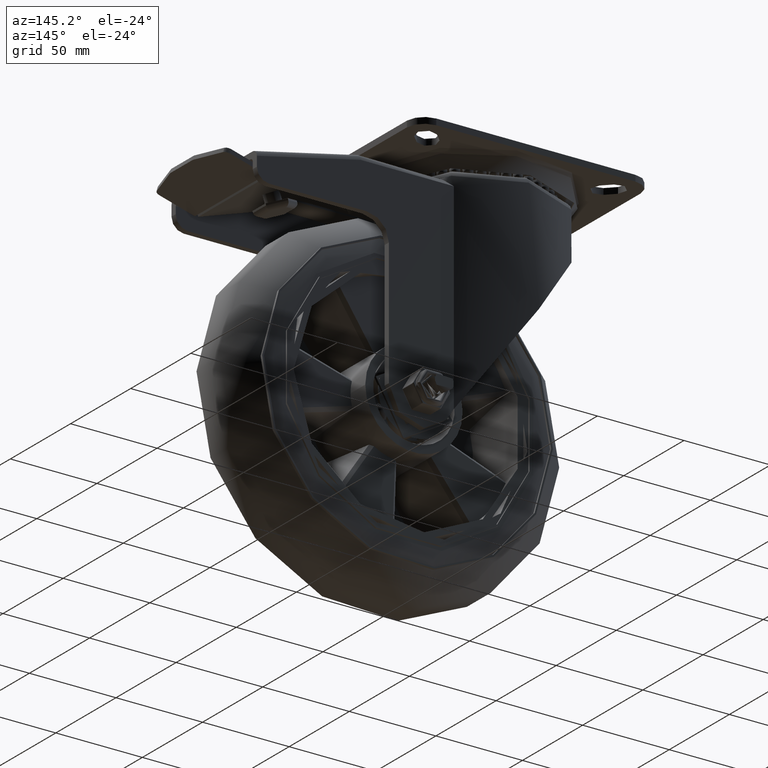
[diagram: clean part render]
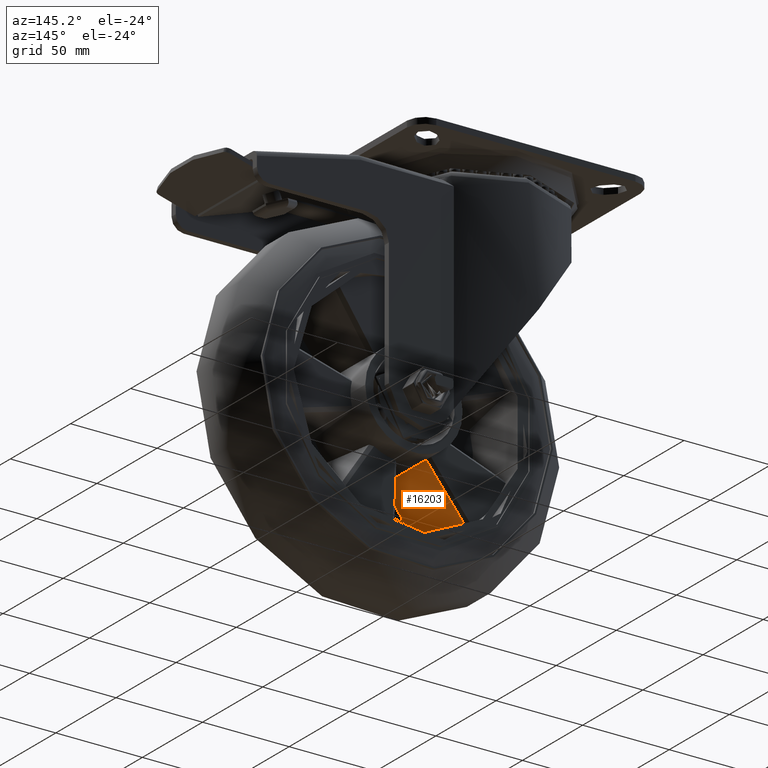
[diagram: same view with one face highlighted and labeled with its STEP entity id]
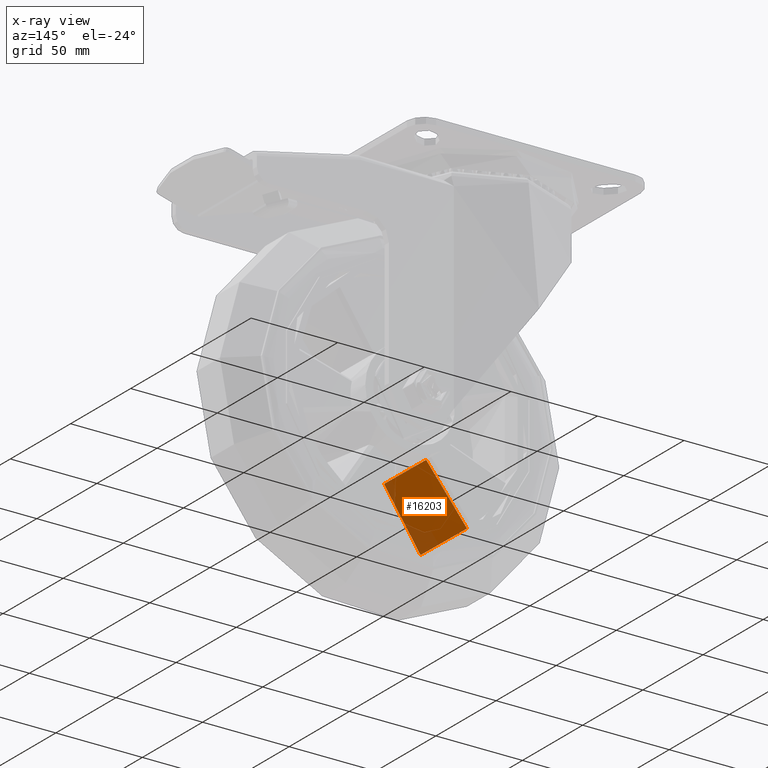
[diagram: x-ray of the same camera — body ghosted, the highlighted face saturated]
A machine part, auxiliary view. The second image highlights one B-rep face of the part: STEP entity #16203.
The next image is the same camera in x-ray: the body ghosted, the highlighted face saturated — about 15% of this face is hidden behind the body in this view.
In plain terms, the highlighted face is a freeform B-spline surface patch.
Its self-contained STEP definition (entity closure, byte-faithful):
#613=B_SPLINE_SURFACE_WITH_KNOTS('',3,3,((#33957,#33958,#33959,#33960),
(#33961,#33962,#33963,#33964),(#33965,#33966,#33967,#33968),(#33969,#33970,
#33971,#33972)),.UNSPECIFIED.,.F.,.F.,.F.,(4,4),(4,4),(-0.00166852237138922,
0.998003343523286),(0.0245552527992,0.975444388399247),.UNSPECIFIED.);
#1505=B_SPLINE_CURVE_WITH_KNOTS('',3,(#27772,#27773,#27774,#27775,#27776,
#27777,#27778),.UNSPECIFIED.,.F.,.F.,(4,3,4),(-3.23842418585543,-1.61946630273231,
-0.000513477992853393),.UNSPECIFIED.);
#1518=B_SPLINE_CURVE_WITH_KNOTS('',3,(#27912,#27913,#27914,#27915,#27916,
#27917,#27918),.UNSPECIFIED.,.F.,.F.,(4,3,4),(-0.0318984203530796,-0.0168657522652112,
-9.06812926331185E-5),.UNSPECIFIED.);
#1567=B_SPLINE_CURVE_WITH_KNOTS('',3,(#30395,#30396,#30397,#30398,#30399,
#30400,#30401,#30402,#30403,#30404,#30405,#30406,#30407,#30408),
 .UNSPECIFIED.,.F.,.F.,(4,2,2,2,2,2,4),(-0.0379052340955124,-0.0282118198192486,
-0.0211999931851508,-0.0168176015388397,-0.0124352098925286,-0.00542338325843073,
-4.10757890556036E-6),.UNSPECIFIED.);
#1607=B_SPLINE_CURVE_WITH_KNOTS('',3,(#33973,#33974,#33975,#33976,#33977,
#33978),.UNSPECIFIED.,.F.,.F.,(4,2,4),(-0.0379267140891082,-0.019191178874427,
-5.15772847908533E-6),.UNSPECIFIED.);
#2459=FACE_OUTER_BOUND('',#3455,.T.);
#3455=EDGE_LOOP('',(#12776,#12777,#12778,#12779));
#7475=VERTEX_POINT('',#27760);
#7476=VERTEX_POINT('',#27771);
#7496=VERTEX_POINT('',#27909);
#7497=VERTEX_POINT('',#27911);
#9319=EDGE_CURVE('',#7475,#7476,#1505,.T.);
#9341=EDGE_CURVE('',#7497,#7496,#1518,.T.);
#9419=EDGE_CURVE('',#7497,#7475,#1567,.T.);
#9459=EDGE_CURVE('',#7496,#7476,#1607,.T.);
#12776=ORIENTED_EDGE('',*,*,#9419,.F.);
#12777=ORIENTED_EDGE('',*,*,#9341,.T.);
#12778=ORIENTED_EDGE('',*,*,#9459,.T.);
#12779=ORIENTED_EDGE('',*,*,#9319,.F.);
#16203=ADVANCED_FACE('',(#2459),#613,.T.);
#27760=CARTESIAN_POINT('',(-40.3058015607661,16.1048068446078,-52.2608575244565));
#27771=CARTESIAN_POINT('',(-35.6076372986452,-15.749999999569,-55.570641224509));
#27772=CARTESIAN_POINT('Ctrl Pts',(-40.3069504830653,16.1048034564598,-52.2623166608184));
#27773=CARTESIAN_POINT('Ctrl Pts',(-39.5488021870193,10.7938914223544,-52.8470332936401));
#27774=CARTESIAN_POINT('Ctrl Pts',(-38.7774315394786,5.48800582589315,-53.4156376118919));
#27775=CARTESIAN_POINT('Ctrl Pts',(-37.9933254741434,0.177374570169425,
-53.9676497342177));
#27776=CARTESIAN_POINT('Ctrl Pts',(-37.2092218587232,-5.13324009265176,
-54.5196601317986));
#27777=CARTESIAN_POINT('Ctrl Pts',(-36.4137864297751,-10.43910746722,-55.0540903034244));
#27778=CARTESIAN_POINT('Ctrl Pts',(-35.6076372979117,-15.7499999995402,
-55.5706412241231));
#27909=CARTESIAN_POINT('',(-14.5311521998235,-15.75,-24.0511042521037));
#27911=CARTESIAN_POINT('',(-16.8313795725861,15.9242729776921,-22.5014368803543));
#27912=CARTESIAN_POINT('Ctrl Pts',(-16.8313795716671,15.9242729779243,-22.5014368835556));
#27913=CARTESIAN_POINT('Ctrl Pts',(-16.4817078975142,10.9335119839251,-22.762996043592));
#27914=CARTESIAN_POINT('Ctrl Pts',(-16.1256516145251,5.9466374804395,-23.0166195707202));
#27915=CARTESIAN_POINT('Ctrl Pts',(-15.7634645229341,0.954901172306764,
-23.2620546076898));
#27916=CARTESIAN_POINT('Ctrl Pts',(-15.3592971368603,-4.61541610975299,
-23.535937470017));
#27917=CARTESIAN_POINT('Ctrl Pts',(-14.9483763805905,-10.179663629837,-23.7990265093773));
#27918=CARTESIAN_POINT('Ctrl Pts',(-14.5311521999173,-15.7500000000095,
-24.0511042520478));
#30395=CARTESIAN_POINT('Ctrl Pts',(-16.8313795753416,15.9242729752292,-22.5014368784615));
#30396=CARTESIAN_POINT('Ctrl Pts',(-18.8316945711611,15.9399142311691,-25.039002974376));
#30397=CARTESIAN_POINT('Ctrl Pts',(-20.8322248536468,15.9555070707382,-27.5763992613005));
#30398=CARTESIAN_POINT('Ctrl Pts',(-24.2802234029072,15.9822742778635,-31.9489580889059));
#30399=CARTESIAN_POINT('Ctrl Pts',(-25.7275906688012,15.9934776701532,-33.7842003349522));
#30400=CARTESIAN_POINT('Ctrl Pts',(-28.0797399251335,16.0116240972702,-36.7663288918311));
#30401=CARTESIAN_POINT('Ctrl Pts',(-28.9844553679044,16.018589291852,-37.9132677405138));
#30402=CARTESIAN_POINT('Ctrl Pts',(-30.7939707039736,16.0324891253695,-40.2070787523774));
#30403=CARTESIAN_POINT('Ctrl Pts',(-31.6987705970561,16.0394237642056,-41.3539509154355));
#30404=CARTESIAN_POINT('Ctrl Pts',(-34.0513589182513,16.0574113657309,-44.3357327632056));
#30405=CARTESIAN_POINT('Ctrl Pts',(-35.4992125145102,16.0684388434511,-46.1705909753331));
#30406=CARTESIAN_POINT('Ctrl Pts',(-38.0662640753117,16.0879076706181,-49.4234209072677));
#30407=CARTESIAN_POINT('Ctrl Pts',(-39.1854198026263,16.0963675214369,-50.8414260006058));
#30408=CARTESIAN_POINT('Ctrl Pts',(-40.3046371884635,16.1047980739453,-52.2593823606225));
#33957=CARTESIAN_POINT('Ctrl Pts',(-40.3438971588644,16.1049460204704,-52.309164575464));
#33958=CARTESIAN_POINT('Ctrl Pts',(-38.7770926360954,5.48685857240537,-53.4159152817649));
#33959=CARTESIAN_POINT('Ctrl Pts',(-37.2110037317007,-5.13140344172871,
-54.5220060443933));
#33960=CARTESIAN_POINT('Ctrl Pts',(-35.6457636092331,-15.7498400219335,
-55.6276201472391));
#33961=CARTESIAN_POINT('Ctrl Pts',(-32.5032042495217,16.0754013645259,-42.3670625385029));
#33962=CARTESIAN_POINT('Ctrl Pts',(-31.2027995339934,5.45728676491527,-43.2800917597841));
#33963=CARTESIAN_POINT('Ctrl Pts',(-29.9031221406984,-5.16097524922902,
-44.1924504065947));
#33964=CARTESIAN_POINT('Ctrl Pts',(-28.6043072565128,-15.7793846779087,
-45.1043245476854));
#33965=CARTESIAN_POINT('Ctrl Pts',(-24.6634939366216,16.045130695212,-32.4241862620147));
#33966=CARTESIAN_POINT('Ctrl Pts',(-23.6295108912716,5.42698683105573,-33.1435182218826));
#33967=CARTESIAN_POINT('Ctrl Pts',(-22.5962642522477,-5.19127518309983,
-33.8621712388217));
#33968=CARTESIAN_POINT('Ctrl Pts',(-21.5638908883464,-15.8096553472559,
-34.5803336965522));
#33969=CARTESIAN_POINT('Ctrl Pts',(-16.8248834457922,16.0144838542457,-22.4804433776567));
#33970=CARTESIAN_POINT('Ctrl Pts',(-16.057346797354,5.39630957924674,-23.0061049909757));
#33971=CARTESIAN_POINT('Ctrl Pts',(-15.2905524639574,-5.22195243492037,
-23.5310820409402));
#33972=CARTESIAN_POINT('Ctrl Pts',(-14.5246385769191,-15.8403021882565,
-24.0555646489799));
#33973=CARTESIAN_POINT('Ctrl Pts',(-14.5311521998214,-15.75,-24.0511042521051));
#33974=CARTESIAN_POINT('Ctrl Pts',(-18.0031283314682,-15.75,-29.2421379862159));
#33975=CARTESIAN_POINT('Ctrl Pts',(-21.4735754392549,-15.75,-34.4315092107785));
#33976=CARTESIAN_POINT('Ctrl Pts',(-28.4999544162969,-15.7500000000001,
-44.9393212302816));
#33977=CARTESIAN_POINT('Ctrl Pts',(-32.0533187076768,-15.7500000000001,
-50.253952167291));
#33978=CARTESIAN_POINT('Ctrl Pts',(-35.6076372984515,-15.7500000000001,
-55.5706412252232));